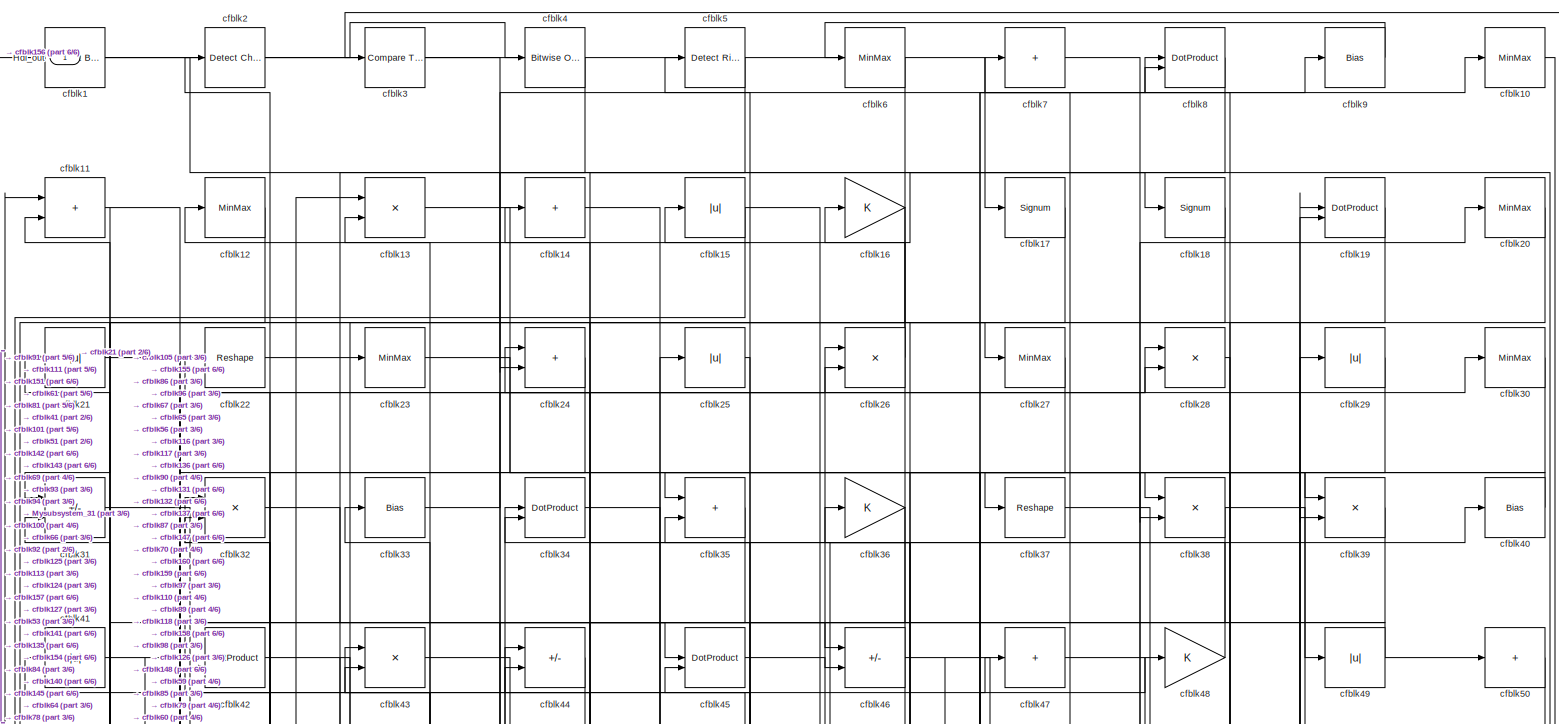
[diagram: root canvas - part 1/6, full width, top band]
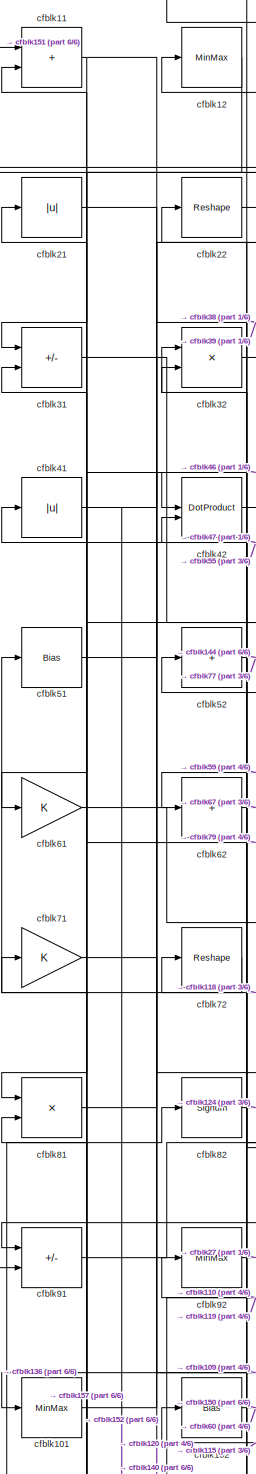
[diagram: root canvas - part 2/6, middle left region]
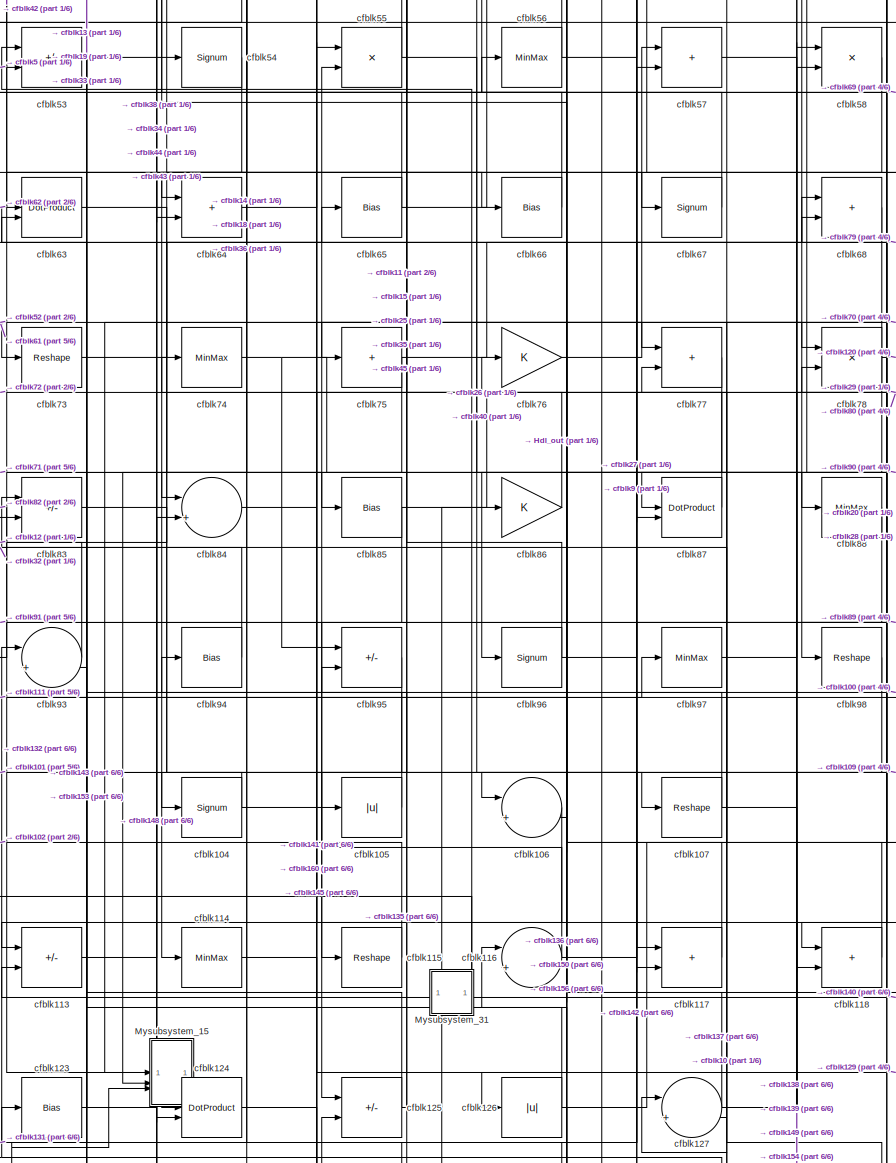
[diagram: root canvas - part 3/6, central region]
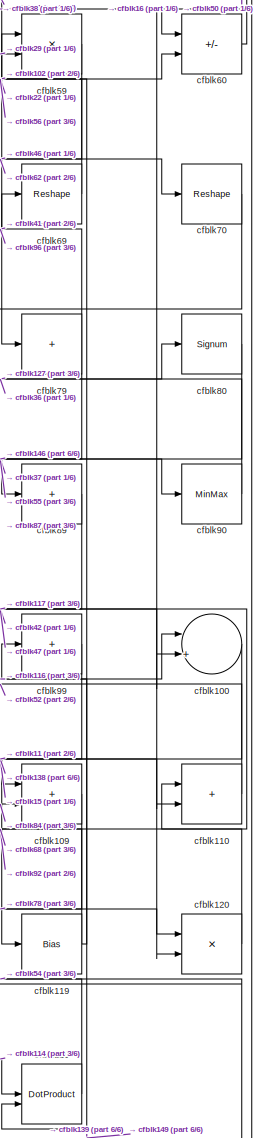
[diagram: root canvas - part 4/6, middle right region]
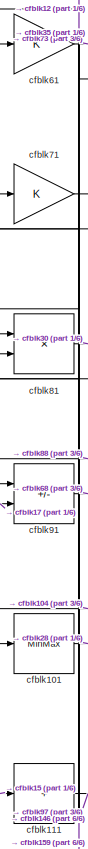
[diagram: root canvas - part 5/6, middle left region]
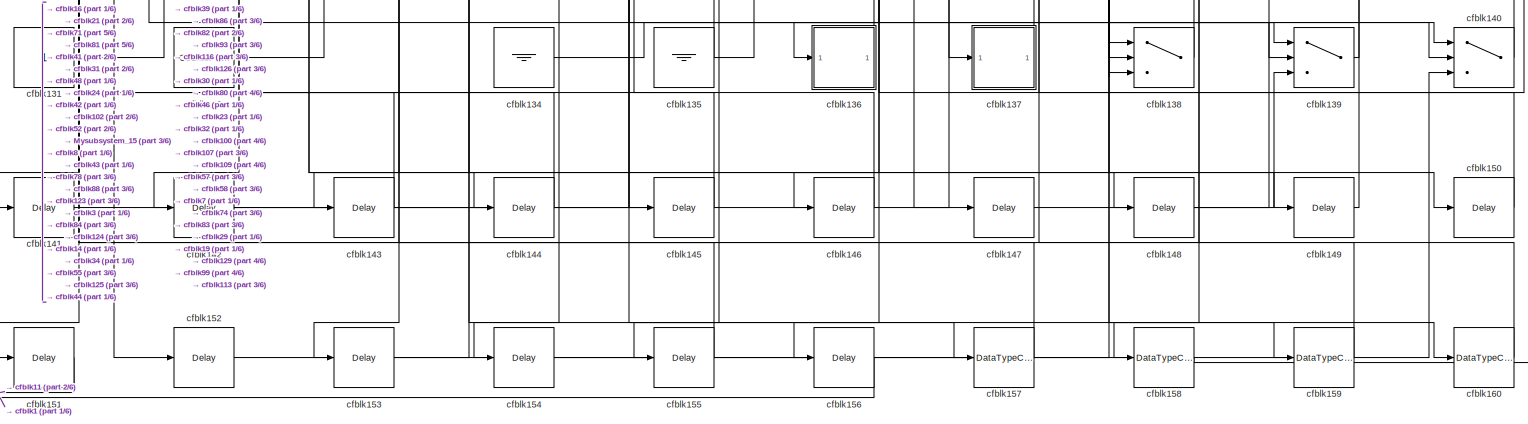
[diagram: root canvas - part 6/6, full width, bottom band]
MODEL slx_32468e7c8cab
KIND model
CONFIG AbsTol = auto
CONFIG EnableMultiTasking = off
CONFIG FixedStep = auto
CONFIG MaxStep = auto
CONFIG MinStep = auto
CONFIG RelTol = 1e-3
CONFIG SampleTimeConstraint = Unconstrained
CONFIG SolverName = VariableStepAuto
CONFIG StartTime = 0.0
CONFIG StopTime = 10.0
BLOCK [Outport] Hdl_out
  OutDataTypeStr = uint8
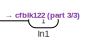
[diagram: Mysubsystem_15 - part 1/3, top center region]
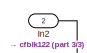
[diagram: Mysubsystem_15 - part 2/3, top center region]
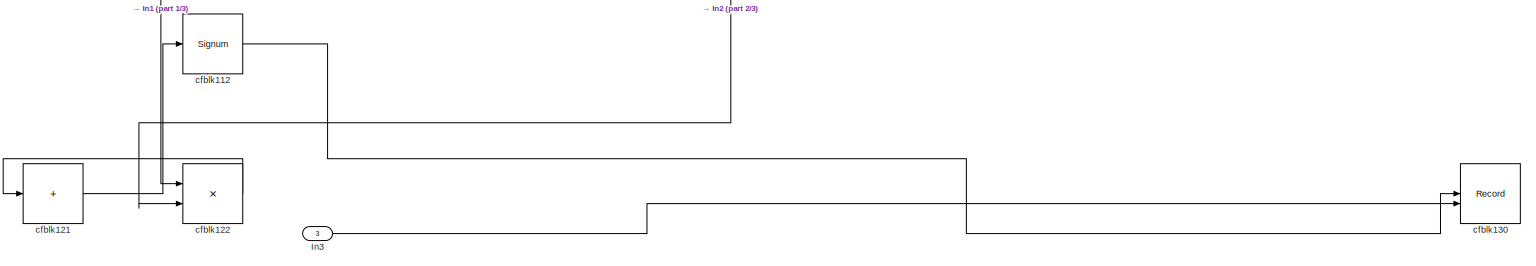
[diagram: Mysubsystem_15 - part 3/3, full width, bottom band]
BLOCK [SubSystem] Mysubsystem_15
  RTWFcnName = Mysubsystem_15
  RTWFcnNameOpts = User specified
  RTWFileNameOpts = Use function name
  RTWSystemCode = Reusable function
  TreatAsAtomicUnit = on
BLOCK [Inport] Mysubsystem_15/In1
BLOCK [Inport] Mysubsystem_15/In2
  Port = 2
BLOCK [Inport] Mysubsystem_15/In3
  Port = 3
BLOCK [Signum] Mysubsystem_15/cfblk112
BLOCK [Sum] Mysubsystem_15/cfblk121
  IconShape = rectangular
  Inputs = +
BLOCK [Product] Mysubsystem_15/cfblk122
  Inputs = */
  RndMeth = Zero
  SaturateOnIntegerOverflow = on
BLOCK [Record] Mysubsystem_15/cfblk130
  CompatibilityTag = XY
  FileSettingsInternal = {"entries":[{"content":{"excelSettings":{"content":{},"type":"Streamout.ExcelSettings"}},"type":"Streamout.FileSettingStorage","uuid":""}],"packageUris":["http:\/\/schema.mathworks.com\/mf0\/streamout_blocks\/R2020a"],"version":"1.0"}
  Layout = [1 1]
  SignalsInternal = {"entries":[{"content":{},"type":"RecordBlkView.InputSignals","uuid":""}],"packageUris":["http:\/\/schema.mathworks.com\/mf0\/streamout_blocks\/R2020a"],"version":"1.0"}
  VisualizationBindings = {"xyplotplugin":{"info":[{"series":[],"subplotID":1}]}}
  st = -1
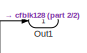
[diagram: Mysubsystem_31 - part 1/2, top left region]
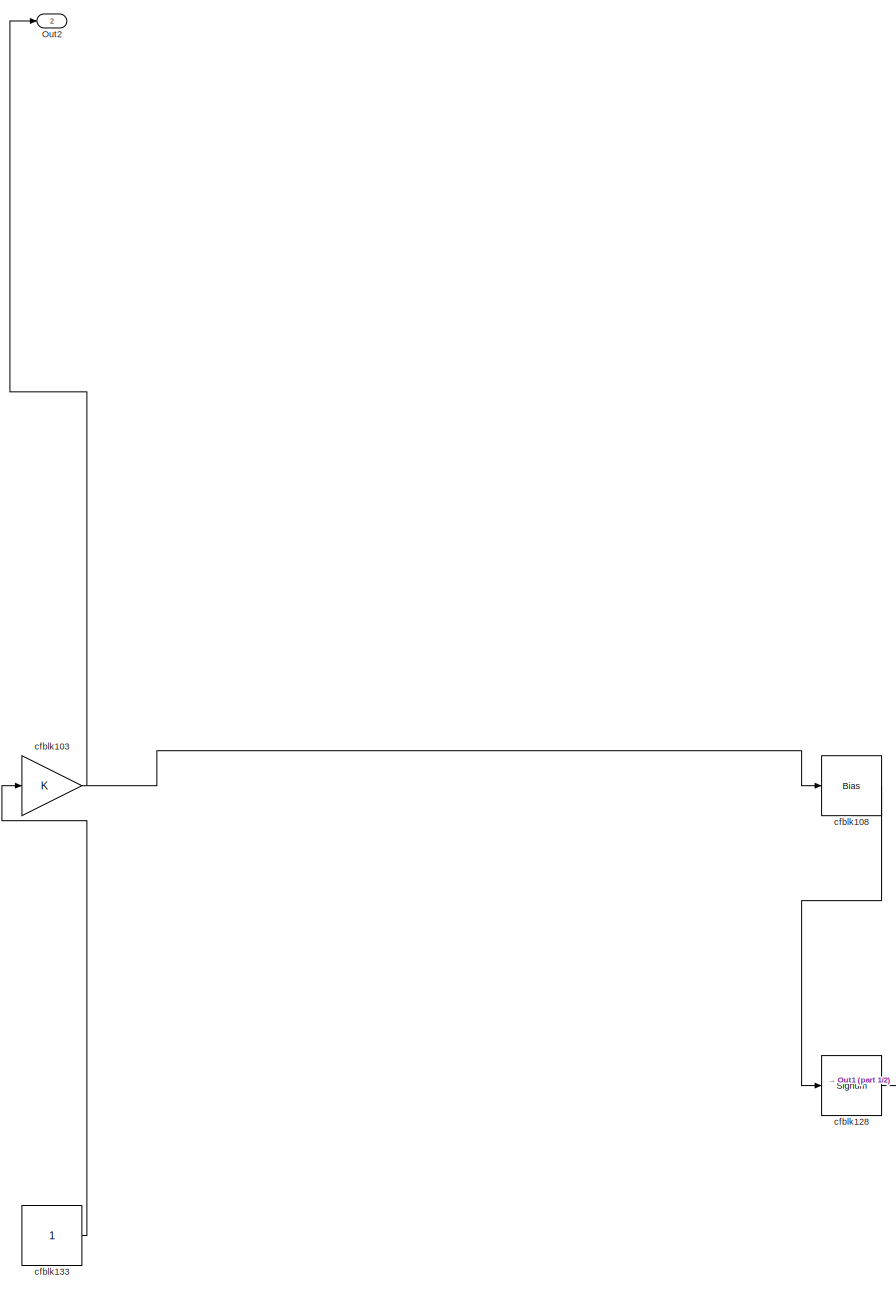
[diagram: Mysubsystem_31 - part 2/2, full width, middle band]
BLOCK [SubSystem] Mysubsystem_31
  RTWFcnName = Mysubsystem_31
  RTWFcnNameOpts = User specified
  RTWFileNameOpts = Use function name
  RTWSystemCode = Reusable function
  TreatAsAtomicUnit = on
BLOCK [Outport] Mysubsystem_31/Out1
BLOCK [Outport] Mysubsystem_31/Out2
  Port = 2
BLOCK [Gain] Mysubsystem_31/cfblk103
BLOCK [Bias] Mysubsystem_31/cfblk108
  Bias = 0.0
  SaturateOnIntegerOverflow = off
BLOCK [Signum] Mysubsystem_31/cfblk128
BLOCK [Constant] Mysubsystem_31/cfblk133
  SampleTime = -1
BLOCK [Reference] cfblk1  REF=simulink/Logic and Bit
Operations/Extract Bits
  LibrarySourceBlock = hdlsllib/Logic and Bit\nOperations/Extract Bits
  SourceBlock = simulink/Logic and Bit\nOperations/Extract Bits
  SourceType = Extract Bits
BLOCK [MinMax] cfblk10
  OutDataTypeStr = uint8
BLOCK [Sum] cfblk100
  Inputs = |++
  OutDataTypeStr = uint8
BLOCK [MinMax] cfblk101
  OutDataTypeStr = uint8
BLOCK [Bias] cfblk102
  Bias = 0.0
  SaturateOnIntegerOverflow = off
BLOCK [Signum] cfblk104
BLOCK [Abs] cfblk105
  OutDataTypeStr = uint8
  SaturateOnIntegerOverflow = off
BLOCK [Sum] cfblk106
  Inputs = |++
  OutDataTypeStr = uint8
BLOCK [Reshape] cfblk107
BLOCK [Sum] cfblk109
  IconShape = rectangular
  OutDataTypeStr = uint8
BLOCK [Sum] cfblk11
  IconShape = rectangular
  OutDataTypeStr = uint8
BLOCK [Sum] cfblk110
  IconShape = rectangular
  OutDataTypeStr = uint8
BLOCK [Sum] cfblk111
  IconShape = rectangular
  Inputs = +
  OutDataTypeStr = uint8
BLOCK [Sum] cfblk113
  IconShape = rectangular
  Inputs = +-
  OutDataTypeStr = uint8
BLOCK [MinMax] cfblk114
  OutDataTypeStr = uint8
BLOCK [Reshape] cfblk115
BLOCK [Sum] cfblk116
  Inputs = |++
  OutDataTypeStr = uint8
BLOCK [Sum] cfblk117
  IconShape = rectangular
  OutDataTypeStr = uint8
BLOCK [Sum] cfblk118
  IconShape = rectangular
  OutDataTypeStr = uint8
BLOCK [Bias] cfblk119
  Bias = 0.0
  SaturateOnIntegerOverflow = off
BLOCK [MinMax] cfblk12
  OutDataTypeStr = uint8
BLOCK [Product] cfblk120
  Inputs = */
  OutDataTypeStr = uint8
  RndMeth = Zero
  SaturateOnIntegerOverflow = on
BLOCK [Bias] cfblk123
  Bias = 0.0
  SaturateOnIntegerOverflow = off
BLOCK [DotProduct] cfblk124
  OutDataTypeStr = uint8
BLOCK [Sum] cfblk125
  IconShape = rectangular
  Inputs = +-
  OutDataTypeStr = uint8
BLOCK [Abs] cfblk126
  OutDataTypeStr = uint8
  SaturateOnIntegerOverflow = off
BLOCK [Sum] cfblk127
  Inputs = |++
  OutDataTypeStr = uint8
BLOCK [DotProduct] cfblk129
  OutDataTypeStr = uint8
BLOCK [Product] cfblk13
  Inputs = */
  OutDataTypeStr = uint8
  RndMeth = Zero
  SaturateOnIntegerOverflow = on
BLOCK [Constant] cfblk131
  OutDataTypeStr = uint8
  SampleTime = -1
BLOCK [Reference] cfblk132  REF=hdlsllib/Sources/Counter
Free-Running
  SourceBlock = hdlsllib/Sources/Counter\nFree-Running
  SourceType = Counter Free-Running
BLOCK [Ground] cfblk134
BLOCK [Ground] cfblk135
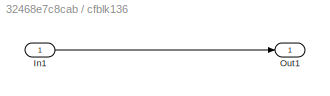
BLOCK [SubSystem] cfblk136
  LibrarySourceBlock = hdlsllib/Ports &\nSubsystems/Subsystem
BLOCK [Inport] cfblk136/In1
BLOCK [Outport] cfblk136/Out1
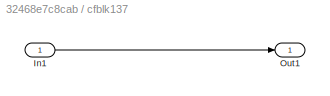
BLOCK [SubSystem] cfblk137
  LibrarySourceBlock = hdlsllib/Ports &\nSubsystems/Subsystem
BLOCK [Inport] cfblk137/In1
BLOCK [Outport] cfblk137/Out1
BLOCK [Switch] cfblk138
  InputSameDT = off
  OutDataTypeStr = uint8
  SaturateOnIntegerOverflow = off
BLOCK [Switch] cfblk139
  InputSameDT = off
  OutDataTypeStr = uint8
  SaturateOnIntegerOverflow = off
BLOCK [Sum] cfblk14
  IconShape = rectangular
  Inputs = +
  OutDataTypeStr = uint8
BLOCK [Switch] cfblk140
  InputSameDT = off
  OutDataTypeStr = uint8
  SaturateOnIntegerOverflow = off
BLOCK [Delay] cfblk141
  InputPortMap = u0
  SampleTime = 1
BLOCK [Delay] cfblk142
  InputPortMap = u0
  SampleTime = 1
BLOCK [Delay] cfblk143
  InputPortMap = u0
  SampleTime = 1
BLOCK [Delay] cfblk144
  InputPortMap = u0
  SampleTime = 1
BLOCK [Delay] cfblk145
  InputPortMap = u0
  SampleTime = 1
BLOCK [Delay] cfblk146
  InputPortMap = u0
  SampleTime = 1
BLOCK [Delay] cfblk147
  InputPortMap = u0
  SampleTime = 1
BLOCK [Delay] cfblk148
  InputPortMap = u0
  SampleTime = 1
BLOCK [Delay] cfblk149
  InputPortMap = u0
  SampleTime = 1
BLOCK [Abs] cfblk15
  OutDataTypeStr = uint8
  SaturateOnIntegerOverflow = off
BLOCK [Delay] cfblk150
  InputPortMap = u0
  SampleTime = 1
BLOCK [Delay] cfblk151
  InputPortMap = u0
  SampleTime = 1
BLOCK [Delay] cfblk152
  InputPortMap = u0
  SampleTime = 1
BLOCK [Delay] cfblk153
  InputPortMap = u0
  SampleTime = 1
BLOCK [Delay] cfblk154
  InputPortMap = u0
  SampleTime = 1
BLOCK [Delay] cfblk155
  InputPortMap = u0
  SampleTime = 1
BLOCK [Delay] cfblk156
  InputPortMap = u0
  SampleTime = 1
BLOCK [DataTypeConversion] cfblk157
  OutDataTypeStr = uint8
  RndMeth = Floor
  SaturateOnIntegerOverflow = off
BLOCK [DataTypeConversion] cfblk158
  OutDataTypeStr = uint8
  RndMeth = Floor
  SaturateOnIntegerOverflow = off
BLOCK [DataTypeConversion] cfblk159
  OutDataTypeStr = uint8
  RndMeth = Floor
  SaturateOnIntegerOverflow = off
BLOCK [Gain] cfblk16
  OutDataTypeStr = uint8
BLOCK [DataTypeConversion] cfblk160
  OutDataTypeStr = uint8
  RndMeth = Floor
  SaturateOnIntegerOverflow = off
BLOCK [Signum] cfblk17
BLOCK [Signum] cfblk18
BLOCK [DotProduct] cfblk19
  OutDataTypeStr = uint8
BLOCK [Reference] cfblk2  REF=simulink/Logic and Bit
Operations/Detect
Change
  LibrarySourceBlock = hdlsllib/Logic and Bit\nOperations/Detect\nChange
  SourceBlock = simulink/Logic and Bit\nOperations/Detect\nChange
  SourceType = Detect Change
BLOCK [MinMax] cfblk20
  OutDataTypeStr = uint8
BLOCK [Abs] cfblk21
  OutDataTypeStr = uint8
  SaturateOnIntegerOverflow = off
BLOCK [Reshape] cfblk22
BLOCK [MinMax] cfblk23
  OutDataTypeStr = uint8
BLOCK [Sum] cfblk24
  IconShape = rectangular
  OutDataTypeStr = uint8
BLOCK [Abs] cfblk25
  OutDataTypeStr = uint8
  SaturateOnIntegerOverflow = off
BLOCK [Product] cfblk26
  Inputs = */
  OutDataTypeStr = uint8
  RndMeth = Zero
  SaturateOnIntegerOverflow = on
BLOCK [MinMax] cfblk27
  OutDataTypeStr = uint8
BLOCK [Product] cfblk28
  Inputs = */
  OutDataTypeStr = uint8
  RndMeth = Zero
  SaturateOnIntegerOverflow = on
BLOCK [Abs] cfblk29
  OutDataTypeStr = uint8
  SaturateOnIntegerOverflow = off
BLOCK [Reference] cfblk3  REF=hdlsllib/Logic and Bit
Operations/Compare
To Constant
  SourceBlock = hdlsllib/Logic and Bit\nOperations/Compare\nTo Constant
  SourceType = Compare To Constant
BLOCK [MinMax] cfblk30
  OutDataTypeStr = uint8
BLOCK [Sum] cfblk31
  IconShape = rectangular
  Inputs = +-
  OutDataTypeStr = uint8
BLOCK [Product] cfblk32
  Inputs = */
  OutDataTypeStr = uint8
  RndMeth = Zero
  SaturateOnIntegerOverflow = on
BLOCK [Bias] cfblk33
  Bias = 0.0
  SaturateOnIntegerOverflow = off
BLOCK [DotProduct] cfblk34
  OutDataTypeStr = uint8
BLOCK [Sum] cfblk35
  IconShape = rectangular
  OutDataTypeStr = uint8
BLOCK [Gain] cfblk36
  OutDataTypeStr = uint8
BLOCK [Reshape] cfblk37
BLOCK [Product] cfblk38
  Inputs = */
  OutDataTypeStr = uint8
  RndMeth = Zero
  SaturateOnIntegerOverflow = on
BLOCK [Product] cfblk39
  Inputs = */
  OutDataTypeStr = uint8
  RndMeth = Zero
  SaturateOnIntegerOverflow = on
BLOCK [Reference] cfblk4  REF=simulink/Logic and Bit
Operations/Bitwise
Operator
  LibrarySourceBlock = hdlsllib/Logic and Bit\nOperations/Bitwise\nOperator
  SourceBlock = simulink/Logic and Bit\nOperations/Bitwise\nOperator
  SourceType = Bitwise Operator
BLOCK [Bias] cfblk40
  Bias = 0.0
  SaturateOnIntegerOverflow = off
BLOCK [Abs] cfblk41
  OutDataTypeStr = uint8
  SaturateOnIntegerOverflow = off
BLOCK [DotProduct] cfblk42
  OutDataTypeStr = uint8
BLOCK [Product] cfblk43
  Inputs = */
  OutDataTypeStr = uint8
  RndMeth = Zero
  SaturateOnIntegerOverflow = on
BLOCK [Sum] cfblk44
  IconShape = rectangular
  Inputs = +-
  OutDataTypeStr = uint8
BLOCK [DotProduct] cfblk45
  OutDataTypeStr = uint8
BLOCK [Sum] cfblk46
  IconShape = rectangular
  Inputs = +-
  OutDataTypeStr = uint8
BLOCK [Sum] cfblk47
  IconShape = rectangular
  Inputs = +
  OutDataTypeStr = uint8
BLOCK [Gain] cfblk48
  OutDataTypeStr = uint8
BLOCK [Abs] cfblk49
  OutDataTypeStr = uint8
  SaturateOnIntegerOverflow = off
BLOCK [Reference] cfblk5  REF=hdlsllib/Logic and Bit
Operations/Detect Rise
Nonnegative
  SourceBlock = hdlsllib/Logic and Bit\nOperations/Detect Rise\nNonnegative
  SourceType = Detect Rise Nonnegative
BLOCK [Sum] cfblk50
  IconShape = rectangular
  Inputs = +
  OutDataTypeStr = uint8
BLOCK [Bias] cfblk51
  Bias = 0.0
  SaturateOnIntegerOverflow = off
BLOCK [Sum] cfblk52
  IconShape = rectangular
  Inputs = +
  OutDataTypeStr = uint8
BLOCK [Sum] cfblk53
  IconShape = rectangular
  Inputs = +-
  OutDataTypeStr = uint8
BLOCK [Signum] cfblk54
BLOCK [Product] cfblk55
  Inputs = */
  OutDataTypeStr = uint8
  RndMeth = Zero
  SaturateOnIntegerOverflow = on
BLOCK [MinMax] cfblk56
  OutDataTypeStr = uint8
BLOCK [Sum] cfblk57
  IconShape = rectangular
  OutDataTypeStr = uint8
BLOCK [Product] cfblk58
  Inputs = */
  OutDataTypeStr = uint8
  RndMeth = Zero
  SaturateOnIntegerOverflow = on
BLOCK [Product] cfblk59
  Inputs = */
  OutDataTypeStr = uint8
  RndMeth = Zero
  SaturateOnIntegerOverflow = on
BLOCK [MinMax] cfblk6
  OutDataTypeStr = uint8
BLOCK [Sum] cfblk60
  IconShape = rectangular
  Inputs = +-
  OutDataTypeStr = uint8
BLOCK [Gain] cfblk61
  OutDataTypeStr = uint8
BLOCK [Sum] cfblk62
  IconShape = rectangular
  Inputs = +
  OutDataTypeStr = uint8
BLOCK [DotProduct] cfblk63
  OutDataTypeStr = uint8
BLOCK [Sum] cfblk64
  IconShape = rectangular
  OutDataTypeStr = uint8
BLOCK [Bias] cfblk65
  Bias = 0.0
  SaturateOnIntegerOverflow = off
BLOCK [Bias] cfblk66
  Bias = 0.0
  SaturateOnIntegerOverflow = off
BLOCK [Signum] cfblk67
BLOCK [Sum] cfblk68
  IconShape = rectangular
  OutDataTypeStr = uint8
BLOCK [Reshape] cfblk69
BLOCK [Sum] cfblk7
  IconShape = rectangular
  Inputs = +
  OutDataTypeStr = uint8
BLOCK [Reshape] cfblk70
BLOCK [Gain] cfblk71
  OutDataTypeStr = uint8
BLOCK [Reshape] cfblk72
BLOCK [Reshape] cfblk73
BLOCK [MinMax] cfblk74
  OutDataTypeStr = uint8
BLOCK [Sum] cfblk75
  IconShape = rectangular
  Inputs = +
  OutDataTypeStr = uint8
BLOCK [Gain] cfblk76
  OutDataTypeStr = uint8
BLOCK [Sum] cfblk77
  IconShape = rectangular
  OutDataTypeStr = uint8
BLOCK [Product] cfblk78
  Inputs = */
  OutDataTypeStr = uint8
  RndMeth = Zero
  SaturateOnIntegerOverflow = on
BLOCK [Sum] cfblk79
  IconShape = rectangular
  Inputs = +
  OutDataTypeStr = uint8
BLOCK [DotProduct] cfblk8
  OutDataTypeStr = uint8
BLOCK [Signum] cfblk80
BLOCK [Product] cfblk81
  Inputs = */
  OutDataTypeStr = uint8
  RndMeth = Zero
  SaturateOnIntegerOverflow = on
BLOCK [Signum] cfblk82
BLOCK [Sum] cfblk83
  IconShape = rectangular
  Inputs = +-
  OutDataTypeStr = uint8
BLOCK [Sum] cfblk84
  Inputs = |++
  OutDataTypeStr = uint8
BLOCK [Bias] cfblk85
  Bias = 0.0
  SaturateOnIntegerOverflow = off
BLOCK [Gain] cfblk86
  OutDataTypeStr = uint8
BLOCK [DotProduct] cfblk87
  OutDataTypeStr = uint8
BLOCK [MinMax] cfblk88
  OutDataTypeStr = uint8
BLOCK [Sum] cfblk89
  IconShape = rectangular
  Inputs = +
  OutDataTypeStr = uint8
BLOCK [Bias] cfblk9
  Bias = 0.0
  SaturateOnIntegerOverflow = off
BLOCK [MinMax] cfblk90
  OutDataTypeStr = uint8
BLOCK [Sum] cfblk91
  IconShape = rectangular
  Inputs = +-
  OutDataTypeStr = uint8
BLOCK [MinMax] cfblk92
  OutDataTypeStr = uint8
BLOCK [Sum] cfblk93
  Inputs = |++
  OutDataTypeStr = uint8
BLOCK [Bias] cfblk94
  Bias = 0.0
  SaturateOnIntegerOverflow = off
BLOCK [Sum] cfblk95
  IconShape = rectangular
  Inputs = +-
  OutDataTypeStr = uint8
BLOCK [Signum] cfblk96
BLOCK [MinMax] cfblk97
  OutDataTypeStr = uint8
BLOCK [Reshape] cfblk98
BLOCK [Sum] cfblk99
  IconShape = rectangular
  Inputs = +
  OutDataTypeStr = uint8
LINE Mysubsystem_15/In1:1 -> Mysubsystem_15/cfblk122:1
LINE Mysubsystem_15/In2:1 -> Mysubsystem_15/cfblk122:2
LINE Mysubsystem_15/In3:1 -> Mysubsystem_15/cfblk130:2
LINE Mysubsystem_15/cfblk112:1 -> Mysubsystem_15/cfblk130:1
LINE Mysubsystem_15/cfblk121:1 -> Mysubsystem_15/cfblk112:1
LINE Mysubsystem_15/cfblk122:1 -> Mysubsystem_15/cfblk121:1
NET Mysubsystem_31/cfblk103:1 -> Mysubsystem_31/Out2:1, Mysubsystem_31/cfblk108:1
LINE Mysubsystem_31/cfblk108:1 -> Mysubsystem_31/cfblk128:1
LINE Mysubsystem_31/cfblk128:1 -> Mysubsystem_31/Out1:1
LINE Mysubsystem_31/cfblk133:1 -> Mysubsystem_31/cfblk103:1
LINE Mysubsystem_31:1 -> cfblk13:1
LINE Mysubsystem_31:2 -> cfblk53:1
LINE cfblk100:1 -> cfblk138:2
LINE cfblk101:1 -> cfblk28:2
NET cfblk102:1 -> cfblk150:1, cfblk60:2
NET cfblk104:1 -> cfblk101:1, cfblk115:1
LINE cfblk105:1 -> cfblk43:1
LINE cfblk106:1 -> cfblk113:1
NET cfblk107:1 -> cfblk149:1, cfblk94:1
LINE cfblk109:1 -> cfblk138:3
LINE cfblk10:1 -> cfblk127:1
LINE cfblk110:1 -> cfblk52:1
LINE cfblk111:1 -> cfblk97:1
LINE cfblk113:1 -> cfblk26:2
LINE cfblk114:1 -> cfblk129:1
LINE cfblk115:1 -> cfblk102:1
NET cfblk116:1 -> cfblk100:1, cfblk55:2
NET cfblk117:1 -> cfblk34:2, cfblk63:1
NET cfblk118:1 -> cfblk72:1, cfblk77:2
NET cfblk119:1 -> cfblk59:1, cfblk92:1
NET cfblk11:1 -> cfblk109:1, cfblk31:1
LINE cfblk120:1 -> cfblk68:2
NET cfblk123:1 -> cfblk148:1, cfblk63:2
LINE cfblk124:1 -> cfblk160:1
NET cfblk125:1 -> cfblk33:1, cfblk95:2
NET cfblk126:1 -> cfblk13:2, cfblk156:1, cfblk19:2
NET cfblk127:1 -> cfblk34:1, cfblk80:1
LINE cfblk129:1 -> cfblk54:1
LINE cfblk12:1 -> cfblk61:1
NET cfblk131:1 -> cfblk48:1, cfblk93:1
NET cfblk132:1 -> Mysubsystem_15:3, cfblk8:1
LINE cfblk134:1 -> cfblk139:2
NET cfblk135:1 -> cfblk44:1, cfblk86:1
LINE cfblk136/In1:1 -> cfblk136/Out1:1
NET cfblk136:1 -> cfblk82:1, cfblk93:2
LINE cfblk137/In1:1 -> cfblk137/Out1:1
NET cfblk137:1 -> cfblk123:1, cfblk32:2
LINE cfblk138:1 -> cfblk83:1
LINE cfblk139:1 -> cfblk99:1
LINE cfblk13:1 -> cfblk38:1
NET cfblk140:1 -> cfblk113:2, cfblk78:2
LINE cfblk141:1 -> cfblk55:1
LINE cfblk142:1 -> cfblk57:2
LINE cfblk143:1 -> cfblk42:2
LINE cfblk144:1 -> cfblk31:2
LINE cfblk145:1 -> cfblk125:2
LINE cfblk146:1 -> cfblk81:2
LINE cfblk147:1 -> cfblk139:3
LINE cfblk148:1 -> cfblk19:1
LINE cfblk149:1 -> cfblk129:2
NET cfblk14:1 -> cfblk140:1, cfblk78:1
LINE cfblk150:1 -> cfblk116:1
LINE cfblk151:1 -> cfblk11:1
LINE cfblk152:1 -> cfblk140:3
LINE cfblk153:1 -> cfblk84:2
LINE cfblk154:1 -> cfblk58:1
LINE cfblk155:1 -> cfblk43:2
LINE cfblk156:1 -> cfblk1:1
LINE cfblk157:1 -> cfblk21:1
LINE cfblk158:1 -> cfblk3:1
NET cfblk159:1 -> cfblk71:1, cfblk8:2
NET cfblk15:1 -> cfblk110:2, cfblk111:1
LINE cfblk160:1 -> cfblk7:1
LINE cfblk16:1 -> cfblk151:1
LINE cfblk17:1 -> cfblk91:2
LINE cfblk18:1 -> cfblk84:1
NET cfblk19:1 -> cfblk116:2, cfblk39:2
LINE cfblk1:1 -> cfblk18:1
LINE cfblk20:1 -> cfblk98:1
NET cfblk21:1 -> cfblk38:2, cfblk39:1
LINE cfblk22:1 -> cfblk23:1
LINE cfblk23:1 -> cfblk137:1
LINE cfblk24:1 -> cfblk142:1
LINE cfblk25:1 -> cfblk105:1
NET cfblk26:1 -> cfblk2:1, cfblk5:1
NET cfblk27:1 -> cfblk35:1, cfblk87:2
LINE cfblk28:1 -> cfblk118:1
NET cfblk29:1 -> cfblk158:1, cfblk59:2
LINE cfblk2:1 -> cfblk4:1
NET cfblk30:1 -> cfblk136:1, cfblk49:1
NET cfblk31:1 -> cfblk120:1, cfblk140:2
LINE cfblk32:1 -> cfblk45:1
NET cfblk33:1 -> cfblk10:1, cfblk28:1
LINE cfblk34:1 -> cfblk145:1
LINE cfblk35:1 -> cfblk81:1
LINE cfblk36:1 -> cfblk64:1
LINE cfblk37:1 -> cfblk89:1
NET cfblk38:1 -> cfblk124:2, cfblk79:1
LINE cfblk39:1 -> cfblk155:1
LINE cfblk3:1 -> cfblk157:1
LINE cfblk40:1 -> cfblk37:1
NET cfblk41:1 -> cfblk152:1, cfblk46:1
NET cfblk42:1 -> cfblk100:2, cfblk66:1
LINE cfblk43:1 -> cfblk85:1
LINE cfblk44:1 -> cfblk141:1
LINE cfblk45:1 -> cfblk46:2
NET cfblk46:1 -> cfblk147:1, cfblk70:1
LINE cfblk47:1 -> cfblk110:1
LINE cfblk48:1 -> cfblk24:1
NET cfblk49:1 -> cfblk42:1, cfblk50:1
LINE cfblk4:1 -> cfblk24:2
LINE cfblk50:1 -> cfblk60:1
LINE cfblk51:1 -> cfblk47:1
NET cfblk52:1 -> cfblk144:1, cfblk77:1
LINE cfblk53:1 -> cfblk44:2
LINE cfblk54:1 -> cfblk64:2
NET cfblk55:1 -> cfblk11:2, cfblk90:1
NET cfblk56:1 -> Hdl_out:1, cfblk9:1
LINE cfblk57:1 -> cfblk139:1
LINE cfblk58:1 -> cfblk114:1
LINE cfblk59:1 -> cfblk62:1
LINE cfblk5:1 -> cfblk53:2
LINE cfblk60:1 -> cfblk16:1
LINE cfblk61:1 -> cfblk73:1
LINE cfblk62:1 -> cfblk67:1
LINE cfblk63:1 -> cfblk107:1
LINE cfblk64:1 -> cfblk25:1
NET cfblk65:1 -> cfblk14:1, cfblk40:1
LINE cfblk66:1 -> cfblk15:1
LINE cfblk67:1 -> cfblk26:1
NET cfblk68:1 -> Mysubsystem_15:1, cfblk106:2
NET cfblk69:1 -> cfblk22:1, cfblk56:1
LINE cfblk6:1 -> cfblk17:1
LINE cfblk70:1 -> cfblk127:2
LINE cfblk71:1 -> cfblk88:1
LINE cfblk72:1 -> cfblk51:1
LINE cfblk73:1 -> cfblk65:1
NET cfblk74:1 -> cfblk138:1, cfblk95:1
NET cfblk75:1 -> Mysubsystem_15:2, cfblk58:2
NET cfblk76:1 -> cfblk106:1, cfblk57:1
LINE cfblk77:1 -> cfblk96:1
NET cfblk78:1 -> cfblk120:2, cfblk143:1, cfblk75:1, cfblk83:2
NET cfblk79:1 -> cfblk41:1, cfblk87:1
LINE cfblk7:1 -> cfblk159:1
LINE cfblk80:1 -> cfblk146:1
LINE cfblk81:1 -> cfblk30:1
LINE cfblk82:1 -> cfblk124:1
LINE cfblk83:1 -> cfblk117:1
NET cfblk84:1 -> cfblk109:2, cfblk118:2, cfblk76:1
NET cfblk85:1 -> cfblk125:1, cfblk29:1
LINE cfblk86:1 -> cfblk35:2
LINE cfblk87:1 -> cfblk74:1
NET cfblk88:1 -> cfblk153:1, cfblk91:1
LINE cfblk89:1 -> cfblk117:2
LINE cfblk8:1 -> cfblk154:1
LINE cfblk90:1 -> cfblk36:1
LINE cfblk91:1 -> cfblk68:1
LINE cfblk92:1 -> cfblk27:1
LINE cfblk93:1 -> cfblk12:1
LINE cfblk94:1 -> cfblk32:1
LINE cfblk95:1 -> cfblk104:1
NET cfblk96:1 -> cfblk45:2, cfblk69:1
LINE cfblk97:1 -> cfblk20:1
LINE cfblk98:1 -> cfblk126:1
LINE cfblk99:1 -> cfblk119:1
LINE cfblk9:1 -> cfblk6:1
note: NET lines group one-source signal fan-out (src -> all destinations, sorted); 1:1 wires keep LINE
